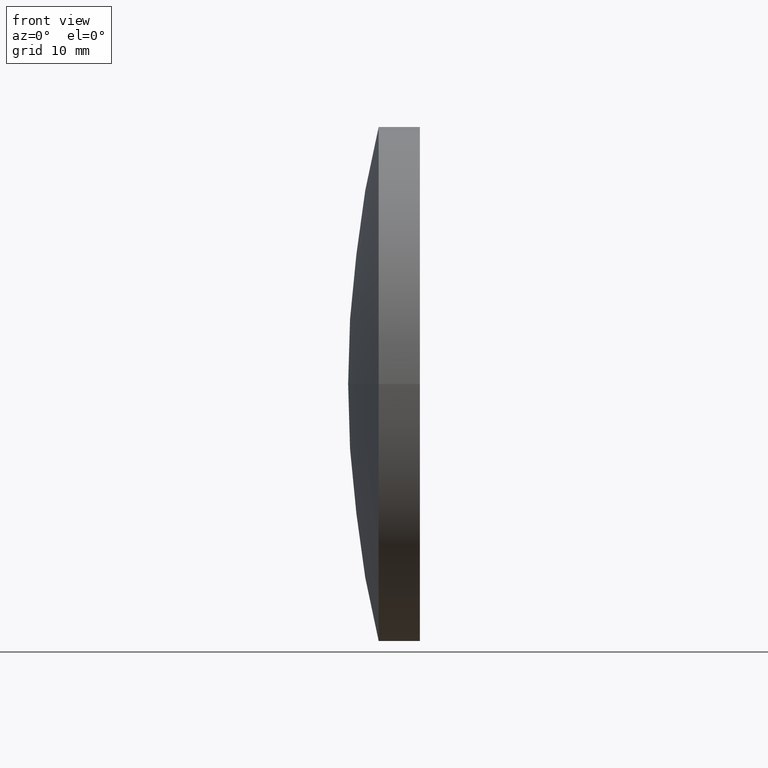
[diagram: clean part render]
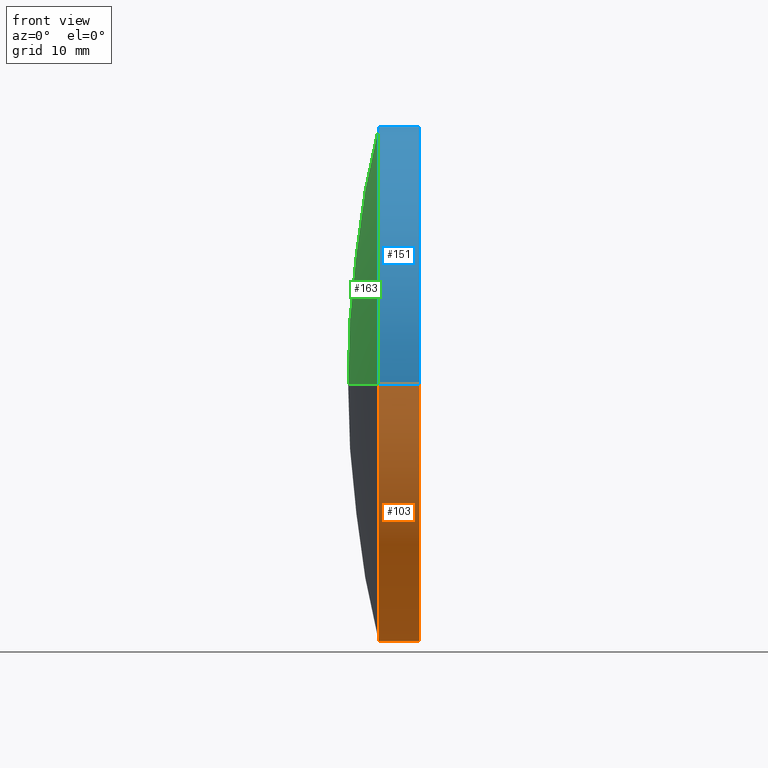
[diagram: same view with three faces highlighted in distinct colors, each labeled with its STEP entity id]
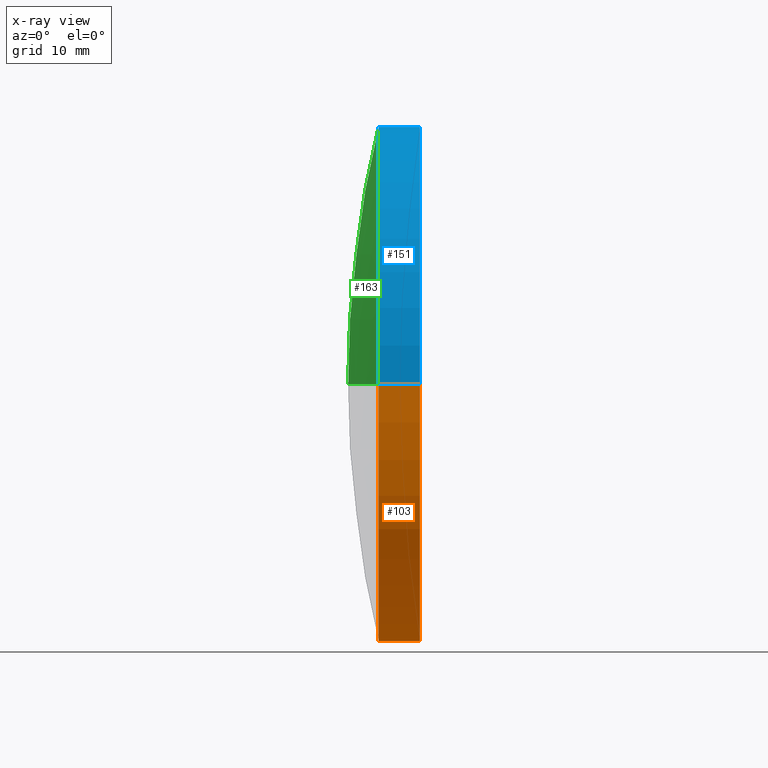
[diagram: x-ray of the same camera — body ghosted, the three highlighted faces saturated]
A machine part, front view with three faces highlighted in distinct colors.
The next image is the same camera in x-ray (body ghosted, the three faces saturated) — at least one of them is partly hidden behind the body in this view.
Their STEP definitions:

[orange] entity #103 — the highlighted cylindrical surface (partial cylindrical patch) has radius 25 mm, axis along (-1, -0, -0).
#2 = CYLINDRICAL_SURFACE ( 'NONE', #149, 24.99999999999991100 ) ;
#4 = DIRECTION ( 'NONE',  ( 1.110223024625161100E-015, -1.000000000000000000, 0.0000000000000000000 ) ) ;
#5 = LINE ( 'NONE', #92, #168 ) ;
#6 = CARTESIAN_POINT ( 'NONE',  ( 231.8889825959263400, 130.4336809418806500, 0.0000000000000000000 ) ) ;
#12 = CIRCLE ( 'NONE', #109, 24.99999999999989700 ) ;
#15 = VERTEX_POINT ( 'NONE', #89 ) ;
#20 = DIRECTION ( 'NONE',  ( -1.000000000000000000, -6.937607244762875000E-016, -0.0000000000000000000 ) ) ;
#22 = ORIENTED_EDGE ( 'NONE', *, *, #57, .F. ) ;
#37 = CARTESIAN_POINT ( 'NONE',  ( 252.1579915119416200, 130.4336809418806800, 0.0000000000000000000 ) ) ;
#39 = CIRCLE ( 'NONE', #95, 24.99999999999992500 ) ;
#43 = VECTOR ( 'NONE', #135, 1000.000000000000000 ) ;
#49 = CARTESIAN_POINT ( 'NONE',  ( 252.1579915119416200, 105.4336809418807900, -3.061616997868347100E-015 ) ) ;
#50 = LINE ( 'NONE', #112, #43 ) ;
#51 = EDGE_CURVE ( 'NONE', #15, #100, #39, .T. ) ;
#55 = EDGE_CURVE ( 'NONE', #100, #169, #50, .T. ) ;
#57 = EDGE_CURVE ( 'NONE', #15, #144, #5, .T. ) ;
#68 = EDGE_CURVE ( 'NONE', #144, #169, #12, .T. ) ;
#74 = FACE_OUTER_BOUND ( 'NONE', #102, .T. ) ;
#89 = CARTESIAN_POINT ( 'NONE',  ( 252.1579915119416200, 155.4336809418803700, 0.0000000000000000000 ) ) ;
#91 = ORIENTED_EDGE ( 'NONE', *, *, #68, .F. ) ;
#92 = CARTESIAN_POINT ( 'NONE',  ( 231.8889825959263100, 155.4336809418805700, 3.061616997868372000E-015 ) ) ;
#95 = AXIS2_PLACEMENT_3D ( 'NONE', #37, #166, #110 ) ;
#100 = VERTEX_POINT ( 'NONE', #49 ) ;
#102 = EDGE_LOOP ( 'NONE', ( #22, #143, #146, #91 ) ) ;
#103 = ADVANCED_FACE ( 'NONE', ( #74 ), #2, .T. ) ;
#107 = CARTESIAN_POINT ( 'NONE',  ( 248.1605412426293100, 130.4336809418806500, 0.0000000000000000000 ) ) ;
#109 = AXIS2_PLACEMENT_3D ( 'NONE', #107, #20, #4 ) ;
#110 = DIRECTION ( 'NONE',  ( 0.0000000000000000000, -1.000000000000000000, 0.0000000000000000000 ) ) ;
#112 = CARTESIAN_POINT ( 'NONE',  ( 231.8889825959263600, 105.4336809418807400, 0.0000000000000000000 ) ) ;
#134 = CARTESIAN_POINT ( 'NONE',  ( 248.1605412426292500, 155.4336809418805400, 0.0000000000000000000 ) ) ;
#135 = DIRECTION ( 'NONE',  ( -1.000000000000000000, -6.937607244762875000E-016, -0.0000000000000000000 ) ) ;
#137 = DIRECTION ( 'NONE',  ( -1.000000000000000000, -6.937607244762875000E-016, -0.0000000000000000000 ) ) ;
#142 = CARTESIAN_POINT ( 'NONE',  ( 248.1605412426293100, 105.4336809418806200, -3.061616997868368400E-015 ) ) ;
#143 = ORIENTED_EDGE ( 'NONE', *, *, #51, .T. ) ;
#144 = VERTEX_POINT ( 'NONE', #134 ) ;
#146 = ORIENTED_EDGE ( 'NONE', *, *, #55, .T. ) ;
#149 = AXIS2_PLACEMENT_3D ( 'NONE', #6, #154, #167 ) ;
#154 = DIRECTION ( 'NONE',  ( -1.000000000000000000, -6.937607244762875000E-016, -0.0000000000000000000 ) ) ;
#166 = DIRECTION ( 'NONE',  ( -1.000000000000000000, -6.937607244762875000E-016, -0.0000000000000000000 ) ) ;
#167 = DIRECTION ( 'NONE',  ( 1.110223024625160500E-015, -1.000000000000000000, 0.0000000000000000000 ) ) ;
#168 = VECTOR ( 'NONE', #137, 1000.000000000000000 ) ;
#169 = VERTEX_POINT ( 'NONE', #142 ) ;

[blue] entity #151 — the highlighted cylindrical surface (partial cylindrical patch) has radius 25 mm, axis along (-1, -0, -0).
#5 = LINE ( 'NONE', #92, #168 ) ;
#11 = EDGE_CURVE ( 'NONE', #169, #144, #126, .T. ) ;
#15 = VERTEX_POINT ( 'NONE', #89 ) ;
#26 = EDGE_LOOP ( 'NONE', ( #183, #189, #160, #131 ) ) ;
#30 = CARTESIAN_POINT ( 'NONE',  ( 248.1605412426293100, 130.4336809418806500, 0.0000000000000000000 ) ) ;
#42 = DIRECTION ( 'NONE',  ( 1.110223024625160500E-015, -1.000000000000000000, 0.0000000000000000000 ) ) ;
#43 = VECTOR ( 'NONE', #135, 1000.000000000000000 ) ;
#45 = AXIS2_PLACEMENT_3D ( 'NONE', #86, #157, #42 ) ;
#49 = CARTESIAN_POINT ( 'NONE',  ( 252.1579915119416200, 105.4336809418807900, -3.061616997868347100E-015 ) ) ;
#50 = LINE ( 'NONE', #112, #43 ) ;
#53 = CARTESIAN_POINT ( 'NONE',  ( 252.1579915119416200, 130.4336809418806800, 0.0000000000000000000 ) ) ;
#55 = EDGE_CURVE ( 'NONE', #100, #169, #50, .T. ) ;
#56 = FACE_OUTER_BOUND ( 'NONE', #26, .T. ) ;
#57 = EDGE_CURVE ( 'NONE', #15, #144, #5, .T. ) ;
#69 = DIRECTION ( 'NONE',  ( -1.000000000000000000, -6.937607244762875000E-016, -0.0000000000000000000 ) ) ;
#78 = DIRECTION ( 'NONE',  ( -1.000000000000000000, -6.937607244762875000E-016, -0.0000000000000000000 ) ) ;
#79 = CYLINDRICAL_SURFACE ( 'NONE', #45, 24.99999999999991100 ) ;
#86 = CARTESIAN_POINT ( 'NONE',  ( 231.8889825959263400, 130.4336809418806500, 0.0000000000000000000 ) ) ;
#87 = AXIS2_PLACEMENT_3D ( 'NONE', #53, #69, #124 ) ;
#89 = CARTESIAN_POINT ( 'NONE',  ( 252.1579915119416200, 155.4336809418803700, 0.0000000000000000000 ) ) ;
#92 = CARTESIAN_POINT ( 'NONE',  ( 231.8889825959263100, 155.4336809418805700, 3.061616997868372000E-015 ) ) ;
#100 = VERTEX_POINT ( 'NONE', #49 ) ;
#112 = CARTESIAN_POINT ( 'NONE',  ( 231.8889825959263600, 105.4336809418807400, 0.0000000000000000000 ) ) ;
#121 = CIRCLE ( 'NONE', #87, 24.99999999999992500 ) ;
#122 = DIRECTION ( 'NONE',  ( 1.110223024625161100E-015, -1.000000000000000000, 0.0000000000000000000 ) ) ;
#124 = DIRECTION ( 'NONE',  ( 0.0000000000000000000, -1.000000000000000000, 0.0000000000000000000 ) ) ;
#126 = CIRCLE ( 'NONE', #147, 24.99999999999989700 ) ;
#131 = ORIENTED_EDGE ( 'NONE', *, *, #55, .F. ) ;
#134 = CARTESIAN_POINT ( 'NONE',  ( 248.1605412426292500, 155.4336809418805400, 0.0000000000000000000 ) ) ;
#135 = DIRECTION ( 'NONE',  ( -1.000000000000000000, -6.937607244762875000E-016, -0.0000000000000000000 ) ) ;
#137 = DIRECTION ( 'NONE',  ( -1.000000000000000000, -6.937607244762875000E-016, -0.0000000000000000000 ) ) ;
#142 = CARTESIAN_POINT ( 'NONE',  ( 248.1605412426293100, 105.4336809418806200, -3.061616997868368400E-015 ) ) ;
#144 = VERTEX_POINT ( 'NONE', #134 ) ;
#147 = AXIS2_PLACEMENT_3D ( 'NONE', #30, #78, #122 ) ;
#151 = ADVANCED_FACE ( 'NONE', ( #56 ), #79, .T. ) ;
#157 = DIRECTION ( 'NONE',  ( -1.000000000000000000, -6.937607244762875000E-016, -0.0000000000000000000 ) ) ;
#160 = ORIENTED_EDGE ( 'NONE', *, *, #11, .F. ) ;
#168 = VECTOR ( 'NONE', #137, 1000.000000000000000 ) ;
#169 = VERTEX_POINT ( 'NONE', #142 ) ;
#183 = ORIENTED_EDGE ( 'NONE', *, *, #192, .T. ) ;
#189 = ORIENTED_EDGE ( 'NONE', *, *, #57, .T. ) ;
#192 = EDGE_CURVE ( 'NONE', #100, #15, #121, .T. ) ;

[green] entity #163 — the highlighted spherical surface has radius 107 mm.
#7 = AXIS2_PLACEMENT_3D ( 'NONE', #153, #66, #132 ) ;
#8 = CARTESIAN_POINT ( 'NONE',  ( 245.1989956717489200, 130.4336809418805100, 0.0000000000000000000 ) ) ;
#11 = EDGE_CURVE ( 'NONE', #169, #144, #126, .T. ) ;
#16 = CARTESIAN_POINT ( 'NONE',  ( 352.1989956717488900, 130.4336809418805700, 0.0000000000000000000 ) ) ;
#19 = DIRECTION ( 'NONE',  ( -8.496118506040342700E-032, 1.224646799147353200E-016, -1.000000000000000000 ) ) ;
#27 = EDGE_CURVE ( 'NONE', #169, #152, #76, .T. ) ;
#30 = CARTESIAN_POINT ( 'NONE',  ( 248.1605412426293100, 130.4336809418806500, 0.0000000000000000000 ) ) ;
#38 = DIRECTION ( 'NONE',  ( -0.0000000000000000000, 0.0000000000000000000, -1.000000000000000000 ) ) ;
#44 = EDGE_CURVE ( 'NONE', #144, #152, #162, .T. ) ;
#63 = FACE_OUTER_BOUND ( 'NONE', #178, .T. ) ;
#66 = DIRECTION ( 'NONE',  ( -0.0000000000000000000, 0.0000000000000000000, 1.000000000000000000 ) ) ;
#76 = CIRCLE ( 'NONE', #173, 106.9999999999999900 ) ;
#78 = DIRECTION ( 'NONE',  ( -1.000000000000000000, -6.937607244762875000E-016, -0.0000000000000000000 ) ) ;
#104 = ORIENTED_EDGE ( 'NONE', *, *, #27, .F. ) ;
#108 = DIRECTION ( 'NONE',  ( 0.0000000000000000000, 1.000000000000000000, 1.224646799147353200E-016 ) ) ;
#114 = CARTESIAN_POINT ( 'NONE',  ( 352.1989956717488900, 130.4336809418805700, 0.0000000000000000000 ) ) ;
#115 = DIRECTION ( 'NONE',  ( -5.187958058996059700E-016, 1.000000000000000000, 0.0000000000000000000 ) ) ;
#122 = DIRECTION ( 'NONE',  ( 1.110223024625161100E-015, -1.000000000000000000, 0.0000000000000000000 ) ) ;
#126 = CIRCLE ( 'NONE', #147, 24.99999999999989700 ) ;
#127 = AXIS2_PLACEMENT_3D ( 'NONE', #114, #38, #115 ) ;
#129 = ORIENTED_EDGE ( 'NONE', *, *, #44, .T. ) ;
#132 = DIRECTION ( 'NONE',  ( 1.000000000000000000, 0.0000000000000000000, 0.0000000000000000000 ) ) ;
#134 = CARTESIAN_POINT ( 'NONE',  ( 248.1605412426292500, 155.4336809418805400, 0.0000000000000000000 ) ) ;
#139 = ORIENTED_EDGE ( 'NONE', *, *, #11, .T. ) ;
#142 = CARTESIAN_POINT ( 'NONE',  ( 248.1605412426293100, 105.4336809418806200, -3.061616997868368400E-015 ) ) ;
#144 = VERTEX_POINT ( 'NONE', #134 ) ;
#147 = AXIS2_PLACEMENT_3D ( 'NONE', #30, #78, #122 ) ;
#148 = SPHERICAL_SURFACE ( 'NONE', #127, 106.9999999999999900 ) ;
#152 = VERTEX_POINT ( 'NONE', #8 ) ;
#153 = CARTESIAN_POINT ( 'NONE',  ( 352.1989956717488900, 130.4336809418805700, 0.0000000000000000000 ) ) ;
#162 = CIRCLE ( 'NONE', #7, 106.9999999999999900 ) ;
#163 = ADVANCED_FACE ( 'NONE', ( #63 ), #148, .T. ) ;
#169 = VERTEX_POINT ( 'NONE', #142 ) ;
#173 = AXIS2_PLACEMENT_3D ( 'NONE', #16, #19, #108 ) ;
#178 = EDGE_LOOP ( 'NONE', ( #104, #139, #129 ) ) ;